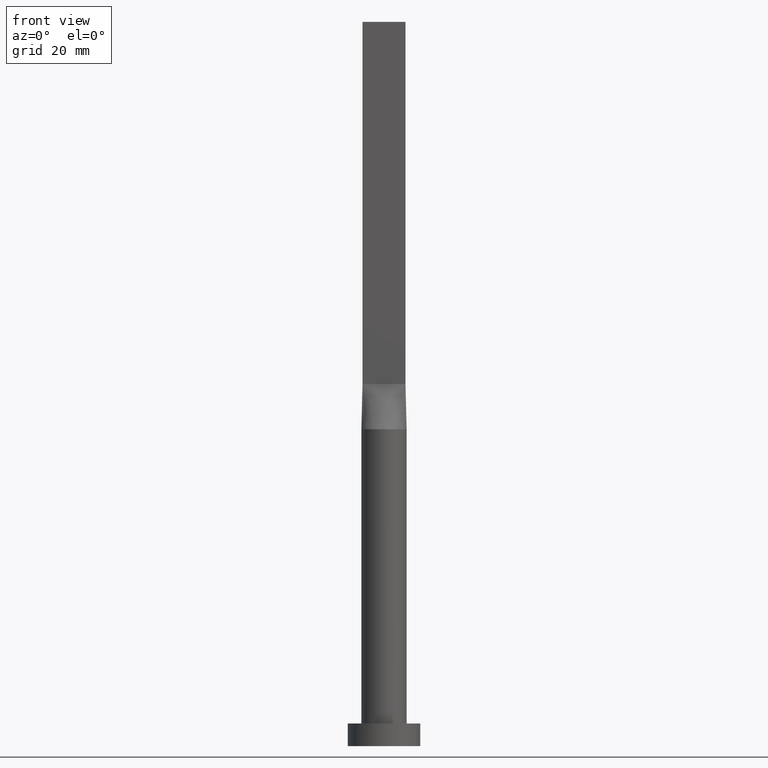
[diagram: clean part render]
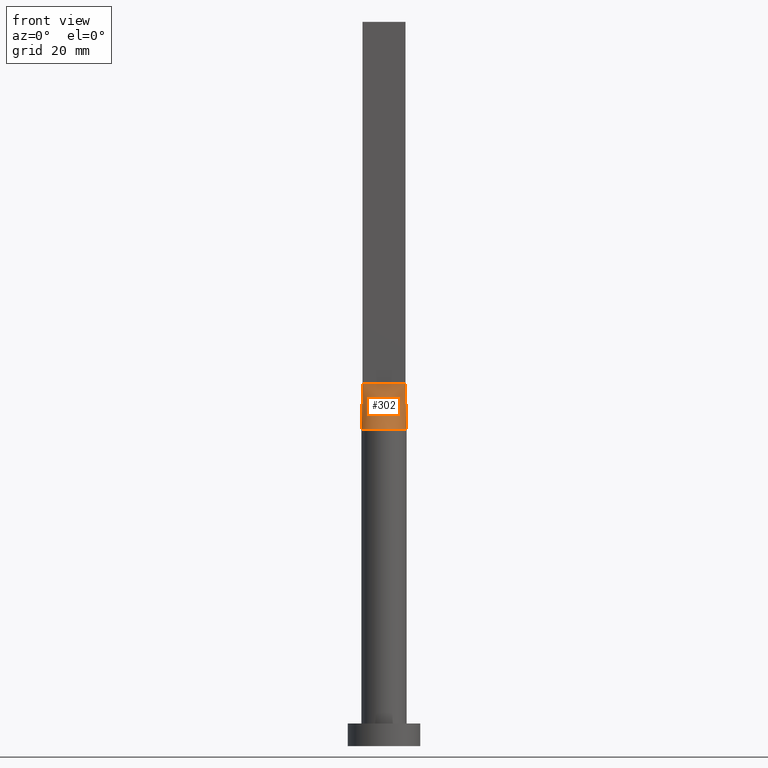
[diagram: same view with one face highlighted and labeled with its STEP entity id]
A machine part, front view. The second image highlights one B-rep face of the part: STEP entity #302.
In plain terms, the highlighted face is a freeform B-spline surface patch.
Its self-contained STEP definition (entity closure, byte-faithful):
#2 = CARTESIAN_POINT ( 'NONE',  ( 4.938833698301754893, -0.7798158709413661738, 70.00000000000000000 ) ) ;
#5 = CARTESIAN_POINT ( 'NONE',  ( 0.000000000000000000, 0.000000000000000000, 70.00000000000000000 ) ) ;
#25 = CARTESIAN_POINT ( 'NONE',  ( -2.353781608410061121, -4.424438117685769889, 69.99999999999998579 ) ) ;
#31 = CARTESIAN_POINT ( 'NONE',  ( 4.029217956433124748, -3.021257902548483365, 70.00000000000004263 ) ) ;
#41 = CARTESIAN_POINT ( 'NONE',  ( 3.168723755431094080, -3.881165404529570484, 69.99999999999998579 ) ) ;
#58 = CARTESIAN_POINT ( 'NONE',  ( -4.750000000000000000, -0.7499999999999991118, 80.00000000000000000 ) ) ;
#64 = CARTESIAN_POINT ( 'NONE',  ( -2.643217737595827010, -4.256483892511436551, 69.99999999999998579 ) ) ;
#67 = CARTESIAN_POINT ( 'NONE',  ( 4.844407413322673328, -0.7649064336825285304, 75.00000000000001421 ) ) ;
#72 = CARTESIAN_POINT ( 'NONE',  ( 4.750000000000000000, -0.7499999999999997780, 80.00000000000000000 ) ) ;
#74 = LINE ( 'NONE', #67, #108 ) ;
#75 = CARTESIAN_POINT ( 'NONE',  ( -1.979166666666661190, -0.7499999999999995559, 79.99999999999998579 ) ) ;
#80 = CARTESIAN_POINT ( 'NONE',  ( 1.732223102076449583, -4.702695359254404295, 70.00000000000000000 ) ) ;
#83 = CARTESIAN_POINT ( 'NONE',  ( 0.3560391241594588196, -5.000000000000000888, 70.00000000000001421 ) ) ;
#86 = CARTESIAN_POINT ( 'NONE',  ( 0.7119876437238003009, -4.961551549233181646, 70.00000000000000000 ) ) ;
#108 = VECTOR ( 'NONE', #163, 1000.000000000000114 ) ;
#114 = CARTESIAN_POINT ( 'NONE',  ( -4.354166666666666075, -0.7499999999999992228, 80.00000000000000000 ) ) ;
#120 = CARTESIAN_POINT ( 'NONE',  ( -3.166666666666662966, -0.7499999999999993339, 79.99999999999998579 ) ) ;
#123 = CARTESIAN_POINT ( 'NONE',  ( -0.7916666666666590801, -0.7499999999999995559, 79.99999999999998579 ) ) ;
#130 = EDGE_CURVE ( 'NONE', #516, #174, #530, .T. ) ;
#133 = CARTESIAN_POINT ( 'NONE',  ( 4.938814826645345768, -0.7798128673650571718, 70.00000000000000000 ) ) ;
#135 = CARTESIAN_POINT ( 'NONE',  ( -0.3958333333333260429, -0.7499999999999995559, 79.99999999999998579 ) ) ;
#143 = CARTESIAN_POINT ( 'NONE',  ( 0.7916666666666742902, -0.7499999999999995559, 79.99999999999997158 ) ) ;
#163 = DIRECTION ( 'NONE',  ( -0.01887803397728733332, 0.002980742206940388637, 0.9998173508241633423 ) ) ;
#170 = CARTESIAN_POINT ( 'NONE',  ( -3.958333333333332149, -0.7499999999999993339, 80.00000000000000000 ) ) ;
#172 = CARTESIAN_POINT ( 'NONE',  ( -1.385416666666659857, -0.7499999999999995559, 79.99999999999998579 ) ) ;
#174 = VERTEX_POINT ( 'NONE', #72 ) ;
#177 = EDGE_LOOP ( 'NONE', ( #598, #416, #619, #313 ) ) ;
#181 = CARTESIAN_POINT ( 'NONE',  ( -0.7119876437238014111, -4.961551549233179870, 69.99999999999998579 ) ) ;
#184 = EDGE_CURVE ( 'NONE', #516, #193, #362, .T. ) ;
#185 = CARTESIAN_POINT ( 'NONE',  ( 3.404830936252118967, -3.673931880027069496, 70.00000000000002842 ) ) ;
#192 = CARTESIAN_POINT ( 'NONE',  ( 2.177083333333340143, -0.7499999999999997780, 79.99999999999998579 ) ) ;
#193 = VERTEX_POINT ( 'NONE', #258 ) ;
#218 = CARTESIAN_POINT ( 'NONE',  ( -4.938814826645345768, -0.7798128673650532861, 70.00000000000000000 ) ) ;
#225 = CARTESIAN_POINT ( 'NONE',  ( -4.332026455536839293, -2.547220758687717801, 70.00000000000000000 ) ) ;
#228 = CARTESIAN_POINT ( 'NONE',  ( 4.753727492665065668, -1.629988260829203561, 69.99999999999998579 ) ) ;
#258 = CARTESIAN_POINT ( 'NONE',  ( -4.938821632323166178, -0.7798139456827060112, 70.00000000000000000 ) ) ;
#269 = CARTESIAN_POINT ( 'NONE',  ( 1.400150253878312157, -4.812847332616943419, 70.00000000000001421 ) ) ;
#272 = CARTESIAN_POINT ( 'NONE',  ( 0.1979166666666732077, -0.7499999999999994449, 79.99999999999997158 ) ) ;
#280 = CARTESIAN_POINT ( 'NONE',  ( 3.958333333333336146, -0.7499999999999997780, 80.00000000000000000 ) ) ;
#294 = DIRECTION ( 'NONE',  ( 0.000000000000000000, 0.000000000000000000, 1.000000000000000000 ) ) ;
#302 = ADVANCED_FACE ( 'NONE', ( #600 ), #354, .T. ) ;
#303 = CARTESIAN_POINT ( 'NONE',  ( -4.750000000000000000, -0.7499999999999991118, 80.00000000000000000 ) ) ;
#306 = CARTESIAN_POINT ( 'NONE',  ( -2.770833333333329040, -0.7499999999999994449, 79.99999999999998579 ) ) ;
#312 = CARTESIAN_POINT ( 'NONE',  ( -4.029217956433126524, -3.021257902548482033, 70.00000000000001421 ) ) ;
#313 = ORIENTED_EDGE ( 'NONE', *, *, #184, .T. ) ;
#315 = CARTESIAN_POINT ( 'NONE',  ( -0.9895833333333258208, -0.7499999999999995559, 79.99999999999998579 ) ) ;
#318 = DIRECTION ( 'NONE',  ( -0.01887803397728733332, -0.002980742206940063810, -0.9998173508241633423 ) ) ;
#322 = CARTESIAN_POINT ( 'NONE',  ( 0.3958333333333404758, -0.7499999999999994449, 79.99999999999997158 ) ) ;
#328 = CARTESIAN_POINT ( 'NONE',  ( 1.583333333333340143, -0.7499999999999997780, 79.99999999999998579 ) ) ;
#354 = B_SPLINE_SURFACE_WITH_KNOTS ( 'NONE', 3, 1, ( 
 ( #218, #541 ),
 ( #597, #114 ),
 ( #406, #170 ),
 ( #225, #120 ),
 ( #312, #306 ),
 ( #502, #413 ),
 ( #497, #75 ),
 ( #64, #456 ),
 ( #25, #172 ),
 ( #366, #315 ),
 ( #553, #123 ),
 ( #181, #135 ),
 ( #429, #618 ),
 ( #83, #272 ),
 ( #86, #322 ),
 ( #269, #143 ),
 ( #80, #462 ),
 ( #424, #380 ),
 ( #612, #328 ),
 ( #41, #615 ),
 ( #185, #192 ),
 ( #31, #384 ),
 ( #569, #522 ),
 ( #228, #280 ),
 ( #558, #572 ),
 ( #133, #377 ) ),
 .UNSPECIFIED., .F., .F., .F.,
 ( 4, 2, 2, 2, 2, 2, 2, 2, 2, 2, 2, 2, 4 ),
 ( 2, 2 ),
 ( 0.000000000000000000, 0.1250000000000000278, 0.2500000000000001110, 0.3125000000000001665, 0.3750000000000002220, 0.4375000000000002220, 0.5000000000000002220, 0.5625000000000002220, 0.6250000000000002220, 0.6875000000000002220, 0.7500000000000003331, 0.8750000000000002220, 1.000000000000000000 ),
 ( 0.000000000000000000, 1.000000000000000000 ),
 .UNSPECIFIED. ) ;
#362 = LINE ( 'NONE', #368, #408 ) ;
#366 = CARTESIAN_POINT ( 'NONE',  ( -1.732223102076450250, -4.702695359254402518, 69.99999999999998579 ) ) ;
#368 = CARTESIAN_POINT ( 'NONE',  ( -4.844407413322673328, -0.7649064336825261989, 75.00000000000001421 ) ) ;
#377 = CARTESIAN_POINT ( 'NONE',  ( 4.750000000000000000, -0.7499999999999997780, 80.00000000000000000 ) ) ;
#380 = CARTESIAN_POINT ( 'NONE',  ( 1.385416666666673624, -0.7499999999999997780, 79.99999999999998579 ) ) ;
#384 = CARTESIAN_POINT ( 'NONE',  ( 2.770833333333340143, -0.7499999999999997780, 79.99999999999998579 ) ) ;
#406 = CARTESIAN_POINT ( 'NONE',  ( -4.753727492665065668, -1.629988260829201119, 70.00000000000000000 ) ) ;
#408 = VECTOR ( 'NONE', #318, 1000.000000000000114 ) ;
#411 = VERTEX_POINT ( 'NONE', #2 ) ;
#413 = CARTESIAN_POINT ( 'NONE',  ( -2.177083333333328152, -0.7499999999999995559, 79.99999999999998579 ) ) ;
#416 = ORIENTED_EDGE ( 'NONE', *, *, #470, .T. ) ;
#418 = EDGE_CURVE ( 'NONE', #193, #411, #608, .T. ) ;
#424 = CARTESIAN_POINT ( 'NONE',  ( 2.353781608410061121, -4.424438117685769889, 69.99999999999998579 ) ) ;
#429 = CARTESIAN_POINT ( 'NONE',  ( -0.3560391241594598188, -5.000000000000001776, 70.00000000000001421 ) ) ;
#456 = CARTESIAN_POINT ( 'NONE',  ( -1.583333333333326820, -0.7499999999999995559, 79.99999999999998579 ) ) ;
#462 = CARTESIAN_POINT ( 'NONE',  ( 0.9895833333333408088, -0.7499999999999996669, 79.99999999999997158 ) ) ;
#470 = EDGE_CURVE ( 'NONE', #411, #174, #74, .T. ) ;
#486 = DIRECTION ( 'NONE',  ( 1.000000000000000000, 0.000000000000000000, 0.000000000000000000 ) ) ;
#497 = CARTESIAN_POINT ( 'NONE',  ( -3.168723755431094524, -3.881165404529569152, 69.99999999999998579 ) ) ;
#502 = CARTESIAN_POINT ( 'NONE',  ( -3.404830936252120299, -3.673931880027065056, 70.00000000000000000 ) ) ;
#516 = VERTEX_POINT ( 'NONE', #303 ) ;
#522 = CARTESIAN_POINT ( 'NONE',  ( 3.166666666666672292, -0.7499999999999997780, 79.99999999999998579 ) ) ;
#527 = DIRECTION ( 'NONE',  ( 1.000000000000000000, -6.847592668329501559E-17, 0.000000000000000000 ) ) ;
#530 = LINE ( 'NONE', #58, #547 ) ;
#541 = CARTESIAN_POINT ( 'NONE',  ( -4.750000000000000000, -0.7499999999999991118, 80.00000000000000000 ) ) ;
#547 = VECTOR ( 'NONE', #527, 1000.000000000000000 ) ;
#553 = CARTESIAN_POINT ( 'NONE',  ( -1.400150253878313711, -4.812847332616943419, 70.00000000000001421 ) ) ;
#558 = CARTESIAN_POINT ( 'NONE',  ( 4.874625637456156291, -1.186344398896586938, 69.99999999999998579 ) ) ;
#569 = CARTESIAN_POINT ( 'NONE',  ( 4.332026455536841070, -2.547220758687719577, 70.00000000000001421 ) ) ;
#572 = CARTESIAN_POINT ( 'NONE',  ( 4.354166666666667851, -0.7499999999999997780, 80.00000000000000000 ) ) ;
#597 = CARTESIAN_POINT ( 'NONE',  ( -4.874625637456154514, -1.186344398896584718, 70.00000000000000000 ) ) ;
#598 = ORIENTED_EDGE ( 'NONE', *, *, #418, .T. ) ;
#600 = FACE_OUTER_BOUND ( 'NONE', #177, .T. ) ;
#605 = AXIS2_PLACEMENT_3D ( 'NONE', #5, #294, #486 ) ;
#608 = CIRCLE ( 'NONE', #605, 5.000000000000000000 ) ;
#612 = CARTESIAN_POINT ( 'NONE',  ( 2.643217737595827455, -4.256483892511438327, 70.00000000000000000 ) ) ;
#615 = CARTESIAN_POINT ( 'NONE',  ( 1.979166666666673402, -0.7499999999999997780, 79.99999999999998579 ) ) ;
#618 = CARTESIAN_POINT ( 'NONE',  ( -0.1979166666666600516, -0.7499999999999994449, 79.99999999999997158 ) ) ;
#619 = ORIENTED_EDGE ( 'NONE', *, *, #130, .F. ) ;